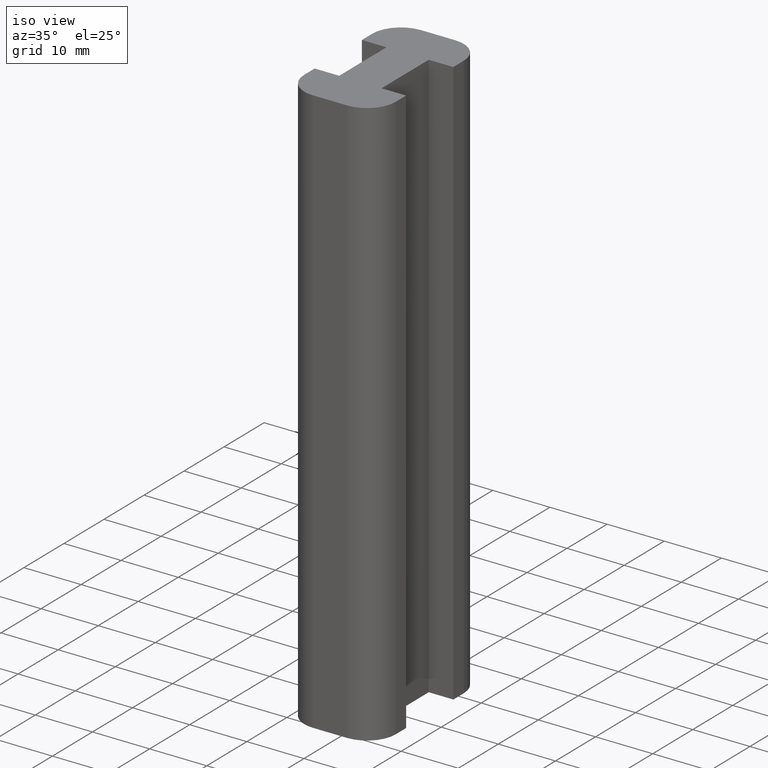
[diagram: clean part render]
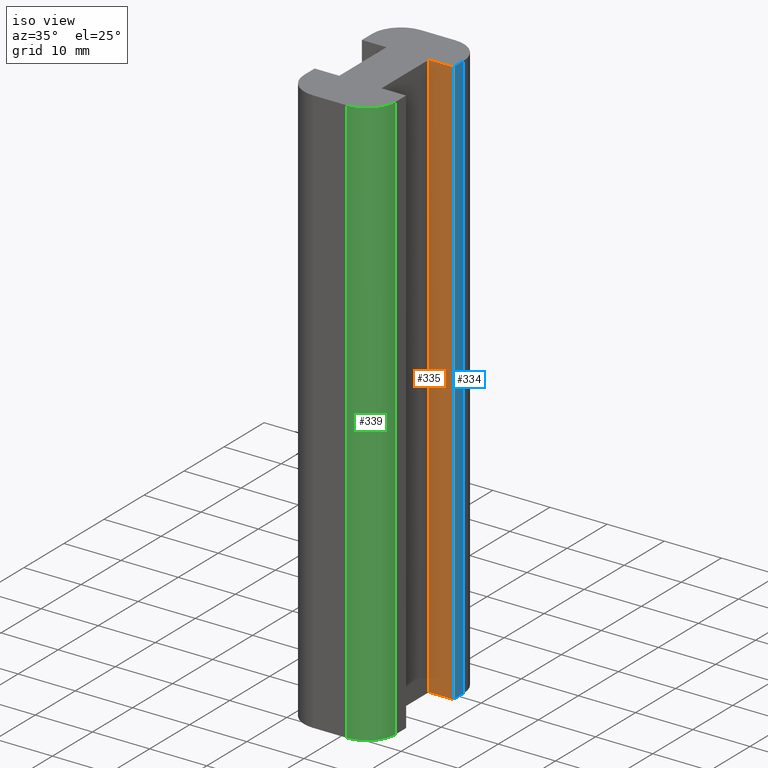
[diagram: same view with three faces highlighted in distinct colors, each labeled with its STEP entity id]
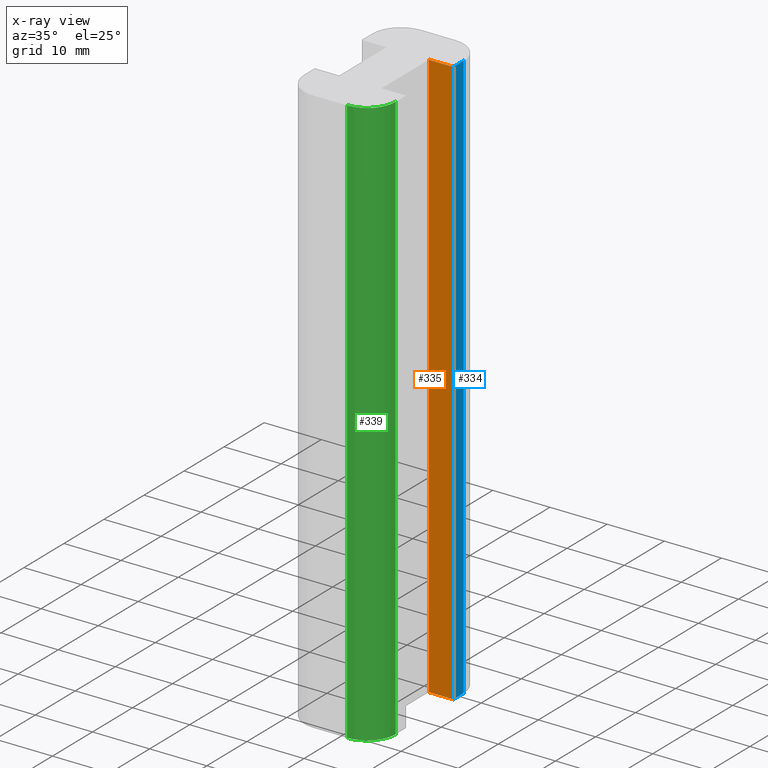
[diagram: x-ray of the same camera — body ghosted, the three highlighted faces saturated]
A machine part, iso view with three faces highlighted in distinct colors.
The next image is the same camera in x-ray (body ghosted, the three faces saturated) — at least one of them is partly hidden behind the body in this view.
Their STEP definitions:

[orange] entity #335 — the highlighted planar face has unit normal (0, -1, 0).
#16=PLANE('',#357);
#31=FACE_OUTER_BOUND('',#49,.T.);
#49=EDGE_LOOP('',(#241,#242,#243,#244));
#69=LINE('',#488,#109);
#70=LINE('',#491,#110);
#71=LINE('',#493,#111);
#72=LINE('',#494,#112);
#109=VECTOR('',#393,100.);
#110=VECTOR('',#396,4.3);
#111=VECTOR('',#397,4.3);
#112=VECTOR('',#398,100.);
#157=VERTEX_POINT('',#484);
#158=VERTEX_POINT('',#486);
#159=VERTEX_POINT('',#490);
#160=VERTEX_POINT('',#492);
#191=EDGE_CURVE('',#157,#158,#69,.T.);
#192=EDGE_CURVE('',#157,#159,#70,.T.);
#193=EDGE_CURVE('',#160,#158,#71,.T.);
#194=EDGE_CURVE('',#159,#160,#72,.T.);
#241=ORIENTED_EDGE('',*,*,#192,.F.);
#242=ORIENTED_EDGE('',*,*,#191,.T.);
#243=ORIENTED_EDGE('',*,*,#193,.F.);
#244=ORIENTED_EDGE('',*,*,#194,.F.);
#335=ADVANCED_FACE('',(#31),#16,.T.);
#357=AXIS2_PLACEMENT_3D('',#489,#394,#395);
#393=DIRECTION('',(0.,0.,1.));
#394=DIRECTION('center_axis',(0.,-1.,0.));
#395=DIRECTION('ref_axis',(1.,0.,0.));
#396=DIRECTION('',(-1.,0.,0.));
#397=DIRECTION('',(1.,0.,0.));
#398=DIRECTION('',(0.,0.,1.));
#484=CARTESIAN_POINT('',(8.,5.9,0.));
#486=CARTESIAN_POINT('',(8.,5.9,100.));
#488=CARTESIAN_POINT('',(8.,5.9,0.));
#489=CARTESIAN_POINT('Origin',(3.7,5.9,0.));
#490=CARTESIAN_POINT('',(3.7,5.9,0.));
#491=CARTESIAN_POINT('',(8.,5.9,0.));
#492=CARTESIAN_POINT('',(3.7,5.9,100.));
#493=CARTESIAN_POINT('',(8.,5.9,100.));
#494=CARTESIAN_POINT('',(3.7,5.9,0.));

[blue] entity #334 — the highlighted planar face has unit normal (1, 0, 0).
#15=PLANE('',#356);
#30=FACE_OUTER_BOUND('',#48,.T.);
#48=EDGE_LOOP('',(#237,#238,#239,#240));
#66=LINE('',#482,#106);
#67=LINE('',#485,#107);
#68=LINE('',#487,#108);
#69=LINE('',#488,#109);
#106=VECTOR('',#388,100.);
#107=VECTOR('',#391,2.6);
#108=VECTOR('',#392,2.6);
#109=VECTOR('',#393,100.);
#154=VERTEX_POINT('',#476);
#156=VERTEX_POINT('',#480);
#157=VERTEX_POINT('',#484);
#158=VERTEX_POINT('',#486);
#188=EDGE_CURVE('',#154,#156,#66,.T.);
#189=EDGE_CURVE('',#154,#157,#67,.T.);
#190=EDGE_CURVE('',#158,#156,#68,.T.);
#191=EDGE_CURVE('',#157,#158,#69,.T.);
#237=ORIENTED_EDGE('',*,*,#189,.F.);
#238=ORIENTED_EDGE('',*,*,#188,.T.);
#239=ORIENTED_EDGE('',*,*,#190,.F.);
#240=ORIENTED_EDGE('',*,*,#191,.F.);
#334=ADVANCED_FACE('',(#30),#15,.T.);
#356=AXIS2_PLACEMENT_3D('',#483,#389,#390);
#388=DIRECTION('',(0.,0.,1.));
#389=DIRECTION('center_axis',(1.,0.,0.));
#390=DIRECTION('ref_axis',(0.,1.,0.));
#391=DIRECTION('',(0.,-1.,0.));
#392=DIRECTION('',(0.,1.,0.));
#393=DIRECTION('',(0.,0.,1.));
#476=CARTESIAN_POINT('',(8.,8.5,0.));
#480=CARTESIAN_POINT('',(8.,8.5,100.));
#482=CARTESIAN_POINT('',(8.,8.5,0.));
#483=CARTESIAN_POINT('Origin',(8.,5.9,0.));
#484=CARTESIAN_POINT('',(8.,5.9,0.));
#485=CARTESIAN_POINT('',(8.,8.5,0.));
#486=CARTESIAN_POINT('',(8.,5.9,100.));
#487=CARTESIAN_POINT('',(8.,8.5,100.));
#488=CARTESIAN_POINT('',(8.,5.9,0.));

[green] entity #339 — the highlighted cylindrical surface (edge-blend (fillet) strip) has radius 5 mm, axis along (0, 0, 1).
#35=FACE_OUTER_BOUND('',#53,.T.);
#53=EDGE_LOOP('',(#257,#258,#259,#260));
#81=LINE('',#512,#121);
#82=LINE('',#518,#122);
#121=VECTOR('',#413,100.);
#122=VECTOR('',#420,100.);
#147=CIRCLE('',#362,5.);
#148=CIRCLE('',#363,5.);
#165=VERTEX_POINT('',#508);
#166=VERTEX_POINT('',#510);
#167=VERTEX_POINT('',#514);
#168=VERTEX_POINT('',#516);
#203=EDGE_CURVE('',#165,#166,#81,.T.);
#204=EDGE_CURVE('',#165,#167,#147,.T.);
#205=EDGE_CURVE('',#168,#166,#148,.T.);
#206=EDGE_CURVE('',#167,#168,#82,.T.);
#257=ORIENTED_EDGE('',*,*,#204,.F.);
#258=ORIENTED_EDGE('',*,*,#203,.T.);
#259=ORIENTED_EDGE('',*,*,#205,.F.);
#260=ORIENTED_EDGE('',*,*,#206,.F.);
#330=CYLINDRICAL_SURFACE('',#361,5.);
#339=ADVANCED_FACE('',(#35),#330,.T.);
#361=AXIS2_PLACEMENT_3D('',#513,#414,#415);
#362=AXIS2_PLACEMENT_3D('',#515,#416,#417);
#363=AXIS2_PLACEMENT_3D('',#517,#418,#419);
#413=DIRECTION('',(0.,0.,1.));
#414=DIRECTION('center_axis',(0.,0.,1.));
#415=DIRECTION('ref_axis',(0.,1.,0.));
#416=DIRECTION('center_axis',(0.,0.,-1.));
#417=DIRECTION('ref_axis',(0.,1.,0.));
#418=DIRECTION('center_axis',(0.,0.,1.));
#419=DIRECTION('ref_axis',(0.,1.,0.));
#420=DIRECTION('',(0.,0.,1.));
#508=CARTESIAN_POINT('',(8.,-8.5,0.));
#510=CARTESIAN_POINT('',(8.,-8.5,100.));
#512=CARTESIAN_POINT('',(8.,-8.5,0.));
#513=CARTESIAN_POINT('Origin',(3.,-8.5,0.));
#514=CARTESIAN_POINT('',(3.,-13.5,0.));
#515=CARTESIAN_POINT('Origin',(3.,-8.5,0.));
#516=CARTESIAN_POINT('',(3.,-13.5,100.));
#517=CARTESIAN_POINT('Origin',(3.,-8.5,100.));
#518=CARTESIAN_POINT('',(3.,-13.5,0.));